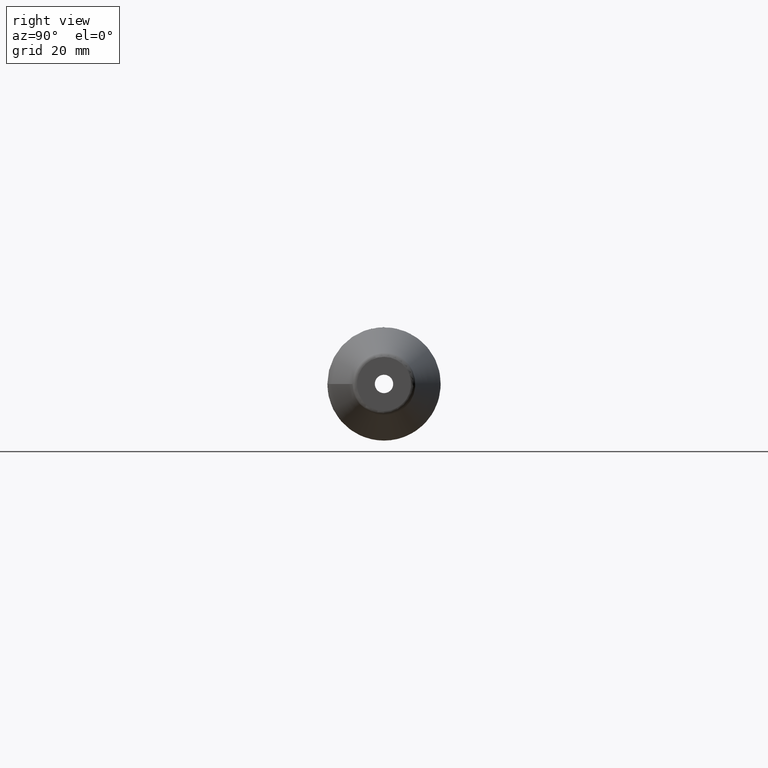
[diagram: clean part render]
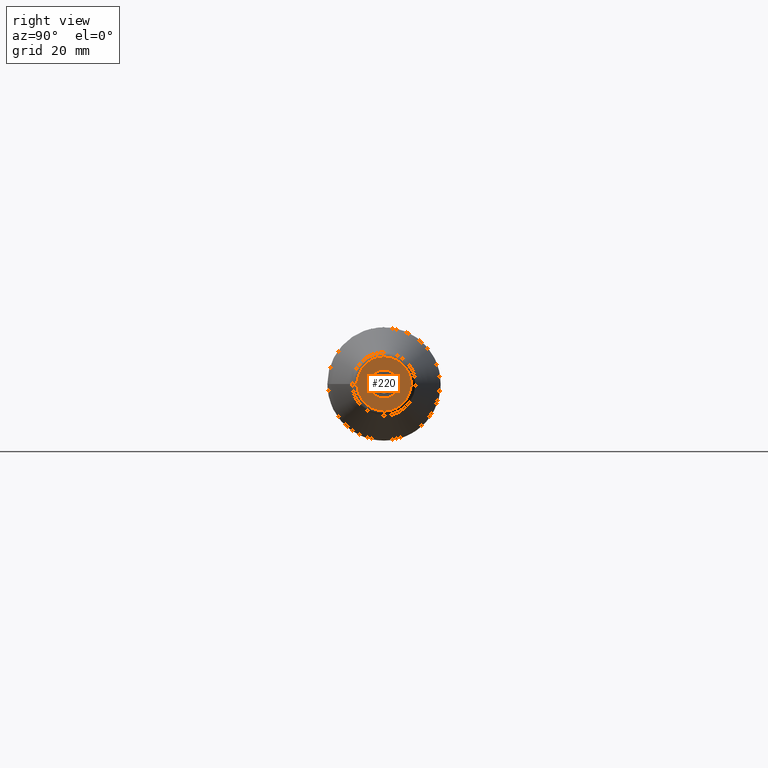
[diagram: same view with one face highlighted and labeled with its STEP entity id]
A machine part, right view. The second image highlights one B-rep face of the part: STEP entity #220.
In plain terms, the highlighted planar face has unit normal (1, 0, 0).
Its self-contained STEP definition (entity closure, byte-faithful):
#16=FACE_BOUND('',#54,.T.);
#20=PLANE('',#274);
#37=FACE_OUTER_BOUND('',#53,.T.);
#53=EDGE_LOOP('',(#186));
#54=EDGE_LOOP('',(#187));
#95=CIRCLE('',#273,6.0756095083418);
#96=CIRCLE('',#275,3.175);
#113=VERTEX_POINT('',#408);
#114=VERTEX_POINT('',#412);
#139=EDGE_CURVE('',#113,#113,#95,.T.);
#140=EDGE_CURVE('',#114,#114,#96,.T.);
#186=ORIENTED_EDGE('',*,*,#139,.F.);
#187=ORIENTED_EDGE('',*,*,#140,.T.);
#220=ADVANCED_FACE('',(#37,#16),#20,.T.);
#273=AXIS2_PLACEMENT_3D('',#410,#340,#341);
#274=AXIS2_PLACEMENT_3D('',#411,#342,#343);
#275=AXIS2_PLACEMENT_3D('',#413,#344,#345);
#340=DIRECTION('center_axis',(-1.,0.,0.));
#341=DIRECTION('ref_axis',(0.,-1.,-1.83697019872103E-16));
#342=DIRECTION('center_axis',(1.,0.,0.));
#343=DIRECTION('ref_axis',(0.,0.,-1.));
#344=DIRECTION('center_axis',(-1.,0.,0.));
#345=DIRECTION('ref_axis',(0.,0.,1.));
#408=CARTESIAN_POINT('',(0.,-7.44047573726E-16,-6.0756095083418));
#410=CARTESIAN_POINT('Origin',(0.,0.,0.));
#411=CARTESIAN_POINT('Origin',(0.,7.,0.));
#412=CARTESIAN_POINT('',(-1.77635683940025E-14,-3.175,3.88825358729285E-16));
#413=CARTESIAN_POINT('Origin',(-1.77635683940025E-14,0.,0.));